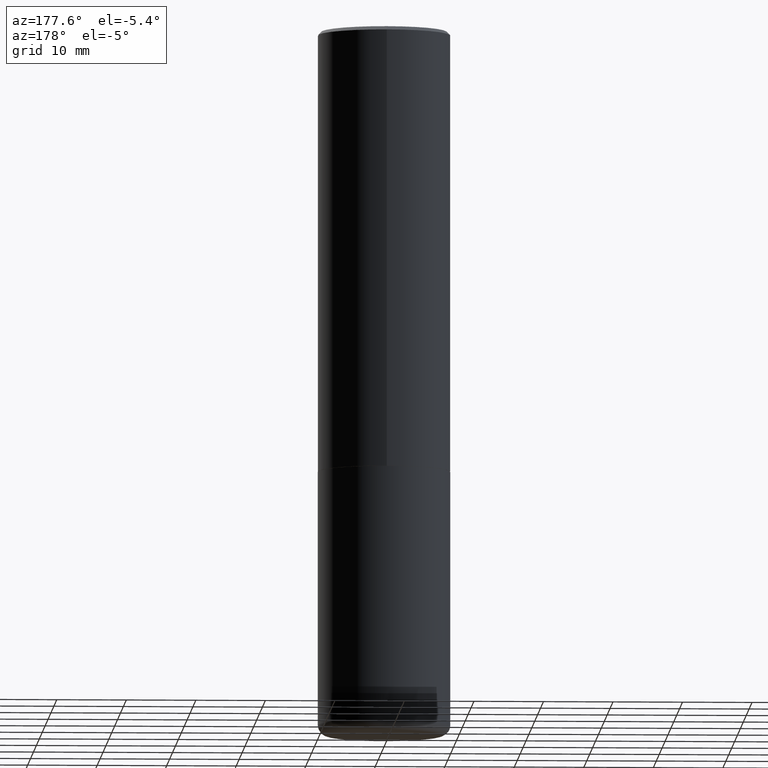
[diagram: clean part render]
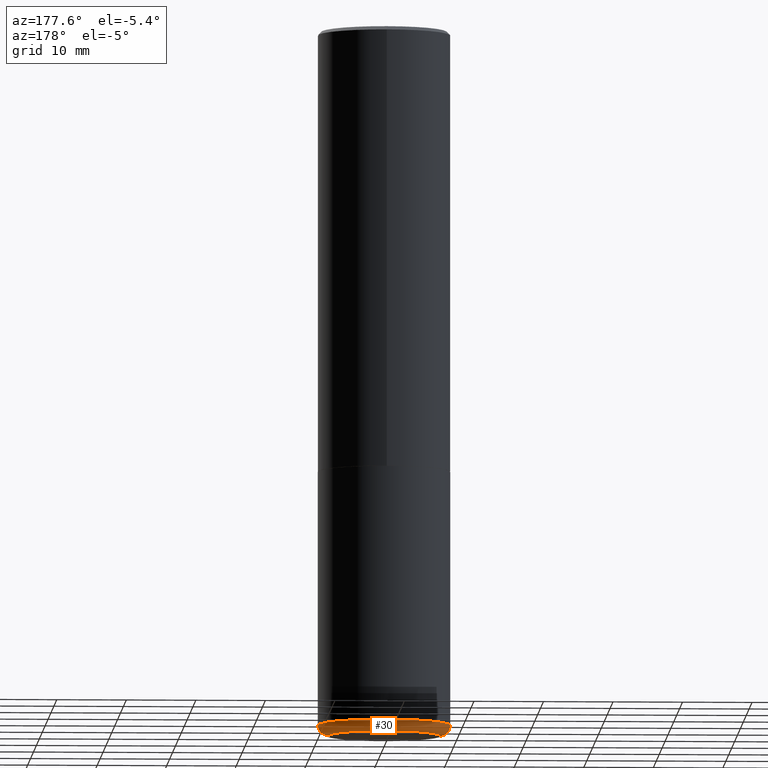
[diagram: same view with one face highlighted and labeled with its STEP entity id]
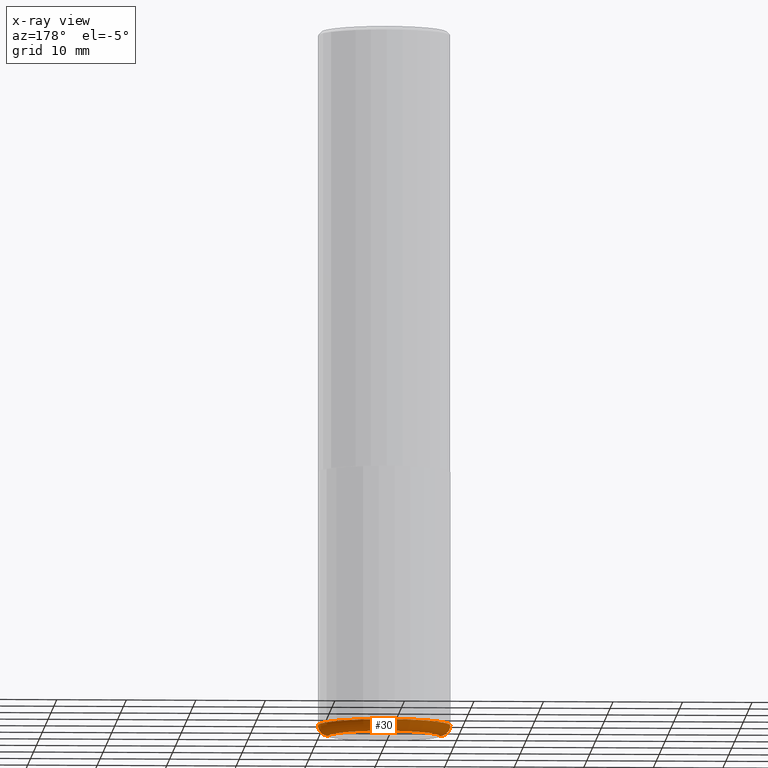
[diagram: x-ray of the same camera — body ghosted, the highlighted face saturated]
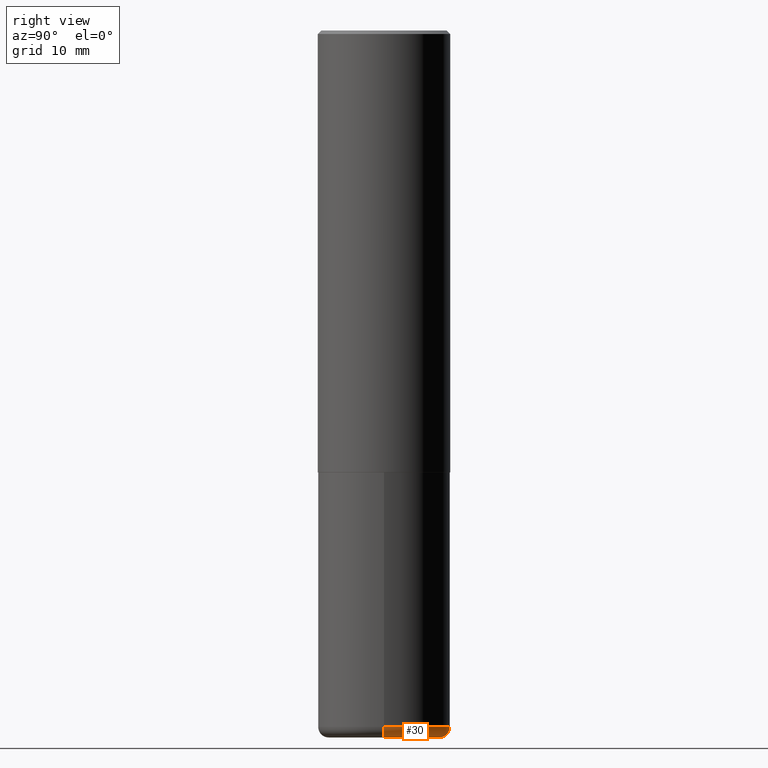
[diagram: same view with one face highlighted and labeled with its STEP entity id]
A machine part, auxiliary view. The second image highlights one B-rep face of the part: STEP entity #30.
The next image is the same camera in x-ray: the body ghosted, the highlighted face saturated — about 0% of this face is hidden behind the body in this view.
A second angle (right view) of the same face is appended — the face is thin or edge-on in the first view.
In plain terms, the highlighted toroidal blend (fillet) surface has major radius 8.001 mm and minor (blend) radius 1.524 mm.
Its self-contained STEP definition (entity closure, byte-faithful):
#6 = CIRCLE ( 'NONE', #160, 0.3150000000000000577 ) ;
#9 = CARTESIAN_POINT ( 'NONE',  ( -0.3150000000000000577, -1.140980847683494193E-14, -4.000000000000000888 ) ) ;
#30 = ADVANCED_FACE ( 'NONE', ( #114 ), #292, .T. ) ;
#48 = VERTEX_POINT ( 'NONE', #307 ) ;
#54 = DIRECTION ( 'NONE',  ( 1.000000000000000000, -6.982962677686265922E-15, 0.000000000000000000 ) ) ;
#56 = ORIENTED_EDGE ( 'NONE', *, *, #337, .F. ) ;
#58 = CARTESIAN_POINT ( 'NONE',  ( -0.3150000000000000577, -1.151822685739767881E-14, -3.939999999999999947 ) ) ;
#66 = DIRECTION ( 'NONE',  ( 1.000000000000000000, -6.982962677686271444E-15, 0.000000000000000000 ) ) ;
#81 = DIRECTION ( 'NONE',  ( -2.445468806185136597E-29, 3.491481338843145583E-15, 1.000000000000000000 ) ) ;
#84 = DIRECTION ( 'NONE',  ( -2.445468806185136597E-29, 3.491481338843145583E-15, 1.000000000000000000 ) ) ;
#99 = EDGE_CURVE ( 'NONE', #48, #231, #104, .T. ) ;
#104 = CIRCLE ( 'NONE', #367, 0.06000000000000024758 ) ;
#114 = FACE_OUTER_BOUND ( 'NONE', #195, .T. ) ;
#151 = CARTESIAN_POINT ( 'NONE',  ( 0.3750000000000002220, -1.637504747917434403E-14, -3.939999999999999947 ) ) ;
#160 = AXIS2_PLACEMENT_3D ( 'NONE', #309, #81, #211 ) ;
#163 = EDGE_CURVE ( 'NONE', #264, #200, #285, .T. ) ;
#164 = AXIS2_PLACEMENT_3D ( 'NONE', #345, #239, #54 ) ;
#171 = DIRECTION ( 'NONE',  ( 1.000000000000000000, -6.982962677686267499E-15, 4.883557194083113462E-29 ) ) ;
#175 = CARTESIAN_POINT ( 'NONE',  ( 9.635147096369438236E-29, -1.375643647504199401E-14, -3.939999999999999947 ) ) ;
#179 = ORIENTED_EDGE ( 'NONE', *, *, #326, .T. ) ;
#190 = CARTESIAN_POINT ( 'NONE',  ( -0.3750000000000002220, -1.109190121594161832E-14, -3.939999999999999947 ) ) ;
#195 = EDGE_LOOP ( 'NONE', ( #179, #404, #56, #402 ) ) ;
#200 = VERTEX_POINT ( 'NONE', #190 ) ;
#211 = DIRECTION ( 'NONE',  ( 1.000000000000000000, -6.982962677686267499E-15, 0.000000000000000000 ) ) ;
#217 = DIRECTION ( 'NONE',  ( -1.000000000000000000, 7.105427357600993970E-15, 0.000000000000000000 ) ) ;
#231 = VERTEX_POINT ( 'NONE', #151 ) ;
#235 = CIRCLE ( 'NONE', #164, 0.3750000000000001110 ) ;
#239 = DIRECTION ( 'NONE',  ( -2.445468806185136597E-29, 3.491481338843145583E-15, 1.000000000000000000 ) ) ;
#261 = DIRECTION ( 'NONE',  ( 7.105427357601001859E-15, 1.000000000000000000, -3.491481338843145583E-15 ) ) ;
#264 = VERTEX_POINT ( 'NONE', #9 ) ;
#267 = AXIS2_PLACEMENT_3D ( 'NONE', #58, #261, #217 ) ;
#285 = CIRCLE ( 'NONE', #267, 0.06000000000000024758 ) ;
#292 = TOROIDAL_SURFACE ( 'NONE', #334, 0.3150000000000000577, 0.06000000000000024758 ) ;
#307 = CARTESIAN_POINT ( 'NONE',  ( 0.3150000000000000577, -1.616555859884375729E-14, -4.000000000000000888 ) ) ;
#309 = CARTESIAN_POINT ( 'NONE',  ( 9.781875224740547508E-29, -1.396592535537258391E-14, -4.000000000000000888 ) ) ;
#320 = CARTESIAN_POINT ( 'NONE',  ( 0.3150000000000000577, -1.595606971851316740E-14, -3.939999999999999947 ) ) ;
#326 = EDGE_CURVE ( 'NONE', #48, #264, #6, .T. ) ;
#327 = DIRECTION ( 'NONE',  ( -6.982962677686266711E-15, -1.000000000000000000, 3.491481338843145583E-15 ) ) ;
#334 = AXIS2_PLACEMENT_3D ( 'NONE', #175, #84, #171 ) ;
#337 = EDGE_CURVE ( 'NONE', #231, #200, #235, .T. ) ;
#345 = CARTESIAN_POINT ( 'NONE',  ( 9.635147096369438236E-29, -1.375643647504199401E-14, -3.939999999999999947 ) ) ;
#367 = AXIS2_PLACEMENT_3D ( 'NONE', #320, #327, #66 ) ;
#402 = ORIENTED_EDGE ( 'NONE', *, *, #99, .F. ) ;
#404 = ORIENTED_EDGE ( 'NONE', *, *, #163, .T. ) ;